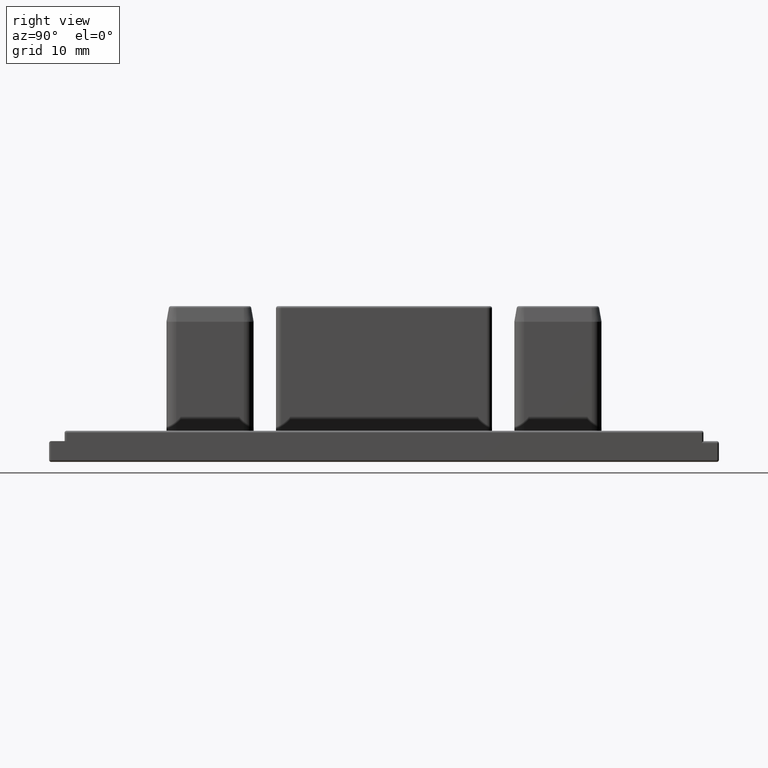
[diagram: clean part render]
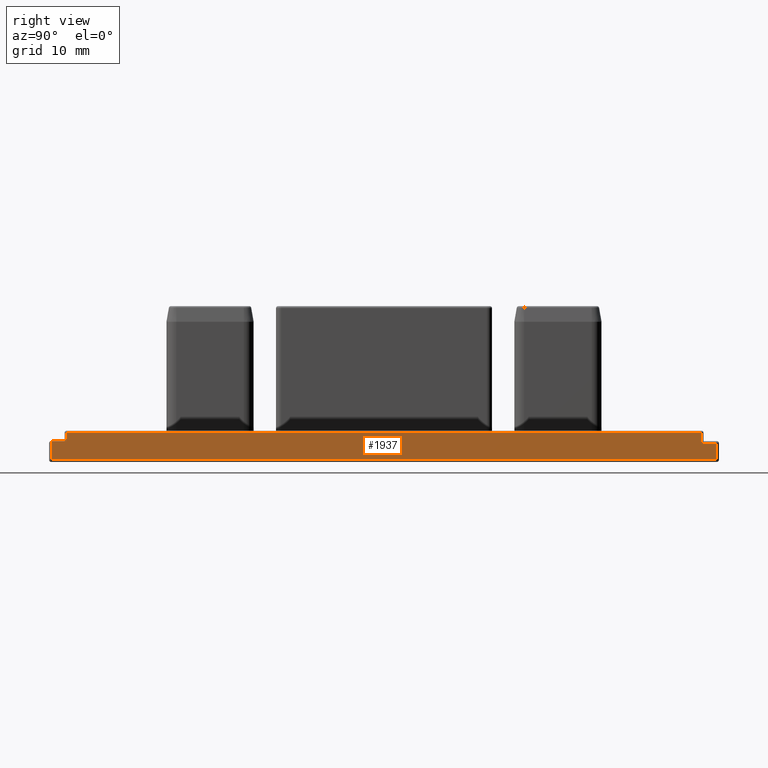
[diagram: same view with one face highlighted and labeled with its STEP entity id]
A machine part, right view. The second image highlights one B-rep face of the part: STEP entity #1937.
In plain terms, the highlighted planar face has unit normal (1, 0, 0).
Its self-contained STEP definition (entity closure, byte-faithful):
#49=PLANE('',#2205);
#177=FACE_OUTER_BOUND('',#301,.T.);
#301=EDGE_LOOP('',(#1557,#1558,#1559,#1560,#1561,#1562,#1563,#1564));
#387=LINE('',#3189,#530);
#389=LINE('',#3224,#532);
#398=LINE('',#3343,#541);
#409=LINE('',#3374,#552);
#414=LINE('',#3400,#557);
#419=LINE('',#3438,#562);
#423=LINE('',#3450,#566);
#438=LINE('',#3522,#581);
#530=VECTOR('',#2465,10.);
#532=VECTOR('',#2505,10.);
#541=VECTOR('',#2564,10.);
#552=VECTOR('',#2597,10.);
#557=VECTOR('',#2634,10.);
#562=VECTOR('',#2659,10.);
#566=VECTOR('',#2671,10.);
#581=VECTOR('',#2762,10.);
#825=VERTEX_POINT('',#3173);
#828=VERTEX_POINT('',#3180);
#831=VERTEX_POINT('',#3188);
#834=VERTEX_POINT('',#3195);
#837=VERTEX_POINT('',#3202);
#842=VERTEX_POINT('',#3215);
#845=VERTEX_POINT('',#3223);
#884=VERTEX_POINT('',#3448);
#1025=EDGE_CURVE('',#828,#831,#387,.T.);
#1041=EDGE_CURVE('',#842,#845,#389,.T.);
#1069=EDGE_CURVE('',#837,#842,#398,.T.);
#1085=EDGE_CURVE('',#834,#837,#409,.T.);
#1100=EDGE_CURVE('',#831,#834,#414,.T.);
#1112=EDGE_CURVE('',#825,#828,#419,.T.);
#1118=EDGE_CURVE('',#884,#825,#423,.T.);
#1156=EDGE_CURVE('',#884,#845,#438,.T.);
#1557=ORIENTED_EDGE('',*,*,#1041,.F.);
#1558=ORIENTED_EDGE('',*,*,#1069,.F.);
#1559=ORIENTED_EDGE('',*,*,#1085,.F.);
#1560=ORIENTED_EDGE('',*,*,#1100,.F.);
#1561=ORIENTED_EDGE('',*,*,#1025,.F.);
#1562=ORIENTED_EDGE('',*,*,#1112,.F.);
#1563=ORIENTED_EDGE('',*,*,#1118,.F.);
#1564=ORIENTED_EDGE('',*,*,#1156,.T.);
#1937=ADVANCED_FACE('',(#177),#49,.T.);
#2205=AXIS2_PLACEMENT_3D('',#3521,#2760,#2761);
#2465=DIRECTION('',(0.,0.,-1.));
#2505=DIRECTION('',(0.,0.,1.));
#2564=DIRECTION('',(6.88510402868314E-17,-1.,0.));
#2597=DIRECTION('',(0.,0.,-1.));
#2634=DIRECTION('',(-6.88510402868314E-17,1.,0.));
#2659=DIRECTION('',(-6.88510402868314E-17,1.,3.93795576289613E-33));
#2671=DIRECTION('',(0.,0.,1.));
#2760=DIRECTION('center_axis',(1.,6.88510402868314E-17,0.));
#2761=DIRECTION('ref_axis',(0.,0.,-1.));
#2762=DIRECTION('',(6.88510402868314E-17,-1.,0.));
#3173=CARTESIAN_POINT('',(24.,-30.56,2.8));
#3180=CARTESIAN_POINT('',(24.,30.56,2.8));
#3188=CARTESIAN_POINT('',(24.,30.56,1.8));
#3189=CARTESIAN_POINT('',(24.,30.56,2.));
#3195=CARTESIAN_POINT('',(24.,32.05,1.8));
#3202=CARTESIAN_POINT('',(24.,32.05,0.2));
#3215=CARTESIAN_POINT('',(24.,-32.05,0.2));
#3223=CARTESIAN_POINT('',(24.,-32.05,2.));
#3224=CARTESIAN_POINT('',(24.,-32.05,0.));
#3343=CARTESIAN_POINT('',(24.,-15.6697625798283,0.2));
#3374=CARTESIAN_POINT('',(24.,32.05,0.));
#3400=CARTESIAN_POINT('',(24.,-15.6697625798283,1.8));
#3438=CARTESIAN_POINT('',(24.,-15.6697625798283,2.8));
#3448=CARTESIAN_POINT('',(24.,-30.56,2.));
#3450=CARTESIAN_POINT('',(24.,-30.56,2.));
#3521=CARTESIAN_POINT('Origin',(24.,-31.3395251596566,0.));
#3522=CARTESIAN_POINT('',(24.,-32.25,2.));